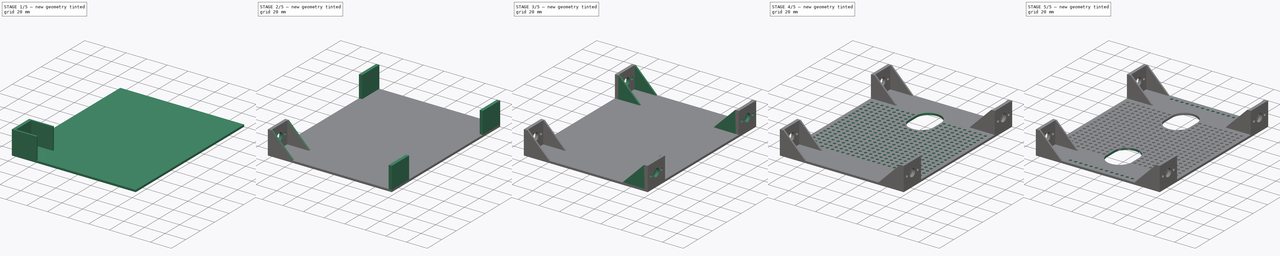
[diagram: build sequence overview — one tinted view per stage of 5, left to right]
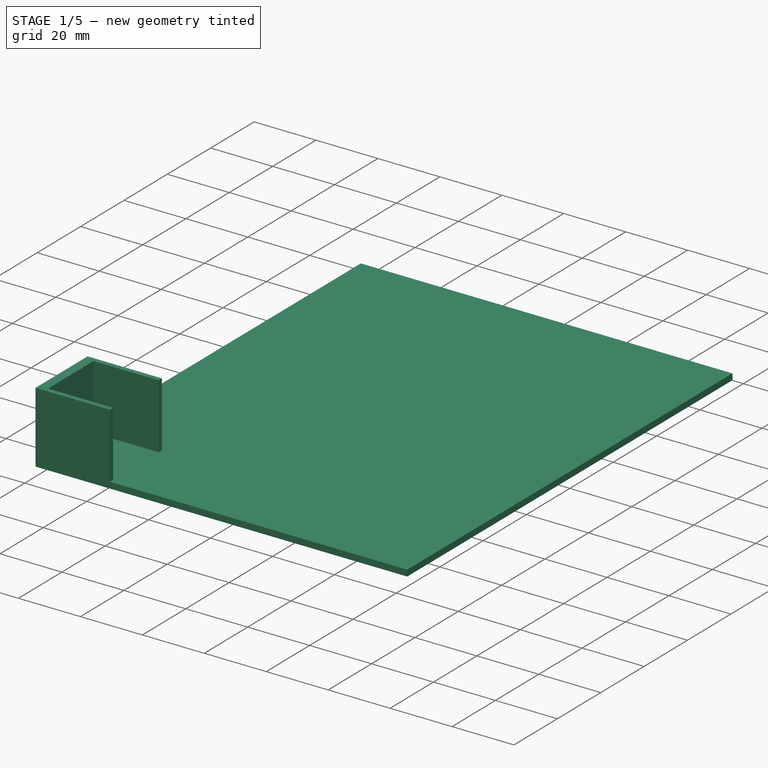
[diagram: stage 1 of 5 — iso view after this stage's code; geometry added in this stage tinted green]
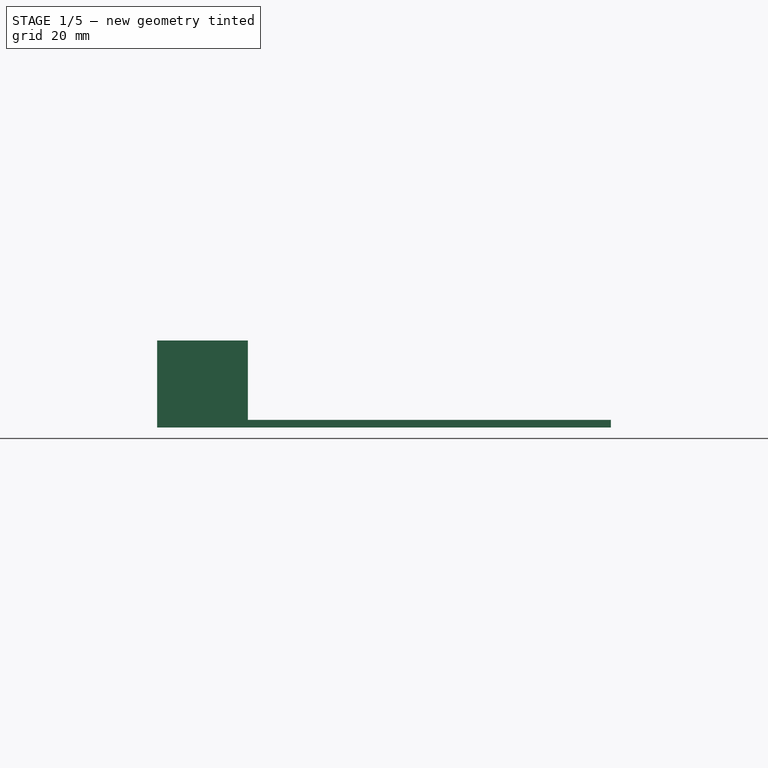
[diagram: stage 1 of 5 — front view after this stage's code; geometry added in this stage tinted green]
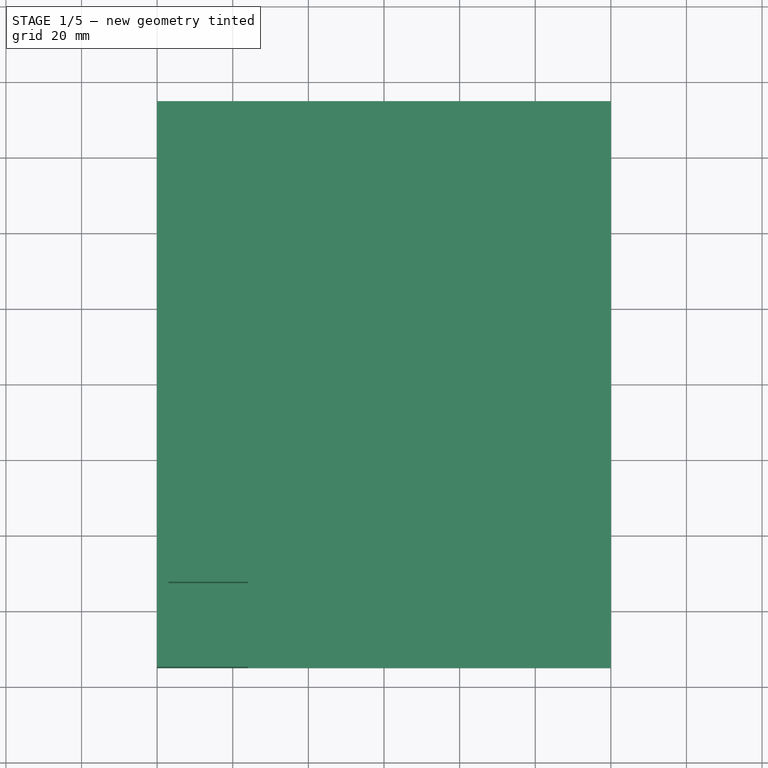
[diagram: stage 1 of 5 — top view after this stage's code; geometry added in this stage tinted green]
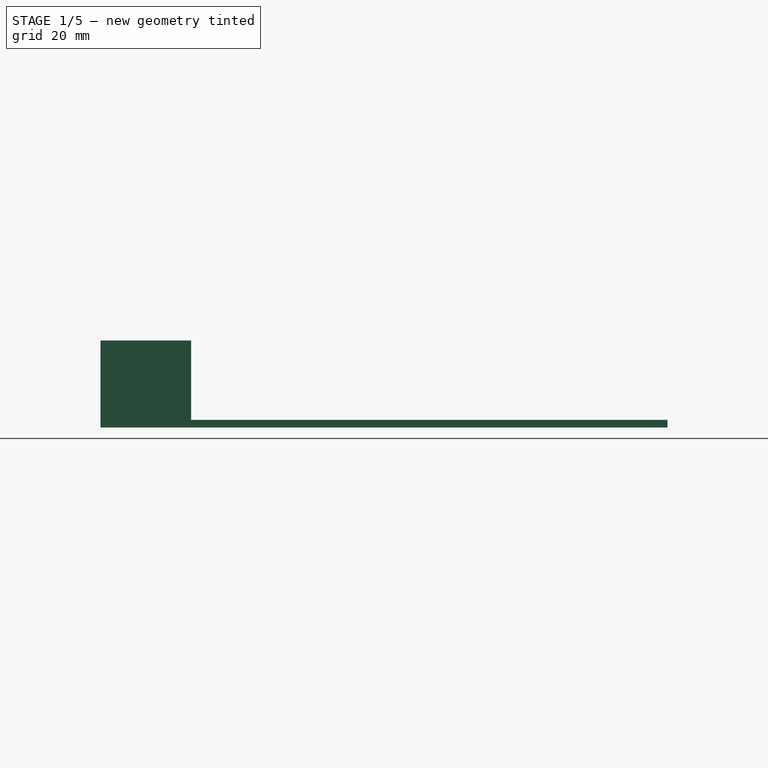
[diagram: stage 1 of 5 — right view after this stage's code; geometry added in this stage tinted green]
FCSTD DOCUMENT  (FreeCAD 0.18.4R)
Label: speed jaci
License: All rights reserved
LicenseURL: http://en.wikipedia.org/wiki/All_rights_reserved
objects: Sketcher::SketchObject×8, PartDesign::Mirrored×6, PartDesign::MultiTransform×5, PartDesign::Pocket×4, App::MeasureDistance×4, PartDesign::Pad×3, PartDesign::LinearPattern×3, PartDesign::Chamfer×2, PartDesign::PolarPattern×2, PartDesign::Body×1
note: 41 computed .brp shape members not serialized (recipe doc carries the construction recipe); baked Part::Feature solids carry a one-line shape summary decoded from their .brp

FEATURE [Sketcher::SketchObject] Sketch
  MapMode = 5
  Support = -> [XY_Plane]
  sketch-geometry (4):
    g0: LineSegment StartX=-60 StartY=75 StartZ=0 EndX=60 EndY=75 EndZ=0
    g1: LineSegment StartX=60 StartY=75 StartZ=0 EndX=60 EndY=-75 EndZ=0
    g2: LineSegment StartX=60 StartY=-75 StartZ=0 EndX=-60 EndY=-75 EndZ=0
    g3: LineSegment StartX=-60 StartY=-75 StartZ=0 EndX=-60 EndY=75 EndZ=0
  constraints (10):
    c: Coincident(g0,g1)
    c: Coincident(g1,g2)
    c: Coincident(g2,g3)
    c: Coincident(g3,g0)
    c: Horizontal(g2)
    c: Vertical(g3)
    c: Symmetric(g0,g0,g-2)
    c: Symmetric(g0,g1,g-1)
    c: Distance(g3) = 150
    c: Distance(g0) = 120
FEATURE [PartDesign::Pad] Pad
  Length = 2
  Length2 = 100
  Profile = -> Sketch
  Type = 0
FEATURE [Sketcher::SketchObject] Sketch001
  MapMode = 5
  Placement = pos=(0,0,2) rot=(0,0,1;0rad)
  Support = -> [Pad]
  expr: Constraints[9] = 21 + 1.5 * 2
  sketch-geometry (4):
    g0: LineSegment StartX=-60 StartY=-51 StartZ=0 EndX=-57 EndY=-51 EndZ=0
    g1: LineSegment StartX=-57 StartY=-51 StartZ=0 EndX=-57 EndY=-75 EndZ=0
    g2: LineSegment StartX=-57 StartY=-75 StartZ=0 EndX=-60 EndY=-75 EndZ=0
    g3: LineSegment StartX=-60 StartY=-75 StartZ=0 EndX=-60 EndY=-51 EndZ=0
  constraints (12):
    c: Coincident(g0,g1)
    c: Coincident(g1,g2)
    c: Coincident(g2,g3)
    c: Coincident(g3,g0)
    c: Horizontal(g0)
    c: Horizontal(g2)
    c: Vertical(g1)
    c: Vertical(g3)
    c: Distance(g0) = 3
    c: Distance(g1) = 24
    c: DistanceX(g2) = -60
    c: DistanceY(g2) = -75
FEATURE [PartDesign::Pad] Pad001
  BaseFeature = -> Pad
  Length = 21
  Length2 = 100
  Profile = -> Sketch001
  Type = 0
FEATURE [Sketcher::SketchObject] Sketch002
  MapMode = 5
  Placement = pos=(-57,0,0) rot=(0.57735,0.57735,0.57735;2.0944rad)
  Support = -> [Pad001]
  sketch-geometry (8):
    g0: LineSegment StartX=-75 StartY=23 StartZ=0 EndX=-73.5 EndY=23 EndZ=0
    g1: LineSegment StartX=-73.5 StartY=23 StartZ=0 EndX=-73.5 EndY=2 EndZ=0
    g2: LineSegment StartX=-73.5 StartY=2 StartZ=0 EndX=-75 EndY=2 EndZ=0
    g3: LineSegment StartX=-75 StartY=2 StartZ=0 EndX=-75 EndY=23 EndZ=0
    g4: LineSegment StartX=-51 StartY=2 StartZ=0 EndX=-52.5 EndY=2 EndZ=0
    g5: LineSegment StartX=-52.5 StartY=2 StartZ=0 EndX=-52.5 EndY=23 EndZ=0
    g6: LineSegment StartX=-52.5 StartY=23 StartZ=0 EndX=-51 EndY=23 EndZ=0
    g7: LineSegment StartX=-51 StartY=23 StartZ=0 EndX=-51 EndY=2 EndZ=0
  constraints (24):
    c: Coincident(g0,g1)
    c: Coincident(g1,g2)
    c: Coincident(g2,g3)
    c: Coincident(g3,g0)
    c: Horizontal(g0)
    c: Horizontal(g2)
    c: Vertical(g1)
    c: Vertical(g3)
    c: Coincident(g4,g5)
    c: Coincident(g5,g6)
    c: Coincident(g6,g7)
    c: Coincident(g7,g4)
    c: Horizontal(g4)
    c: Horizontal(g6)
    c: Vertical(g5)
    c: Vertical(g7)
    c: Equal(g6,g0)
    c: Distance(g0) = 1.5
    c: Equal(g7,g1)
    c: Distance(g1) = 21
    c: DistanceX(g2) = -75
    c: DistanceY(g2) = 2
    c: Distance(g1,g5) = 21
    c: PointOnObject(g4,g2)
FEATURE [PartDesign::Pad] Pad002
  BaseFeature = -> Pad001
  Length = 21
  Length2 = 100
  Profile = -> Sketch002
  Type = 0
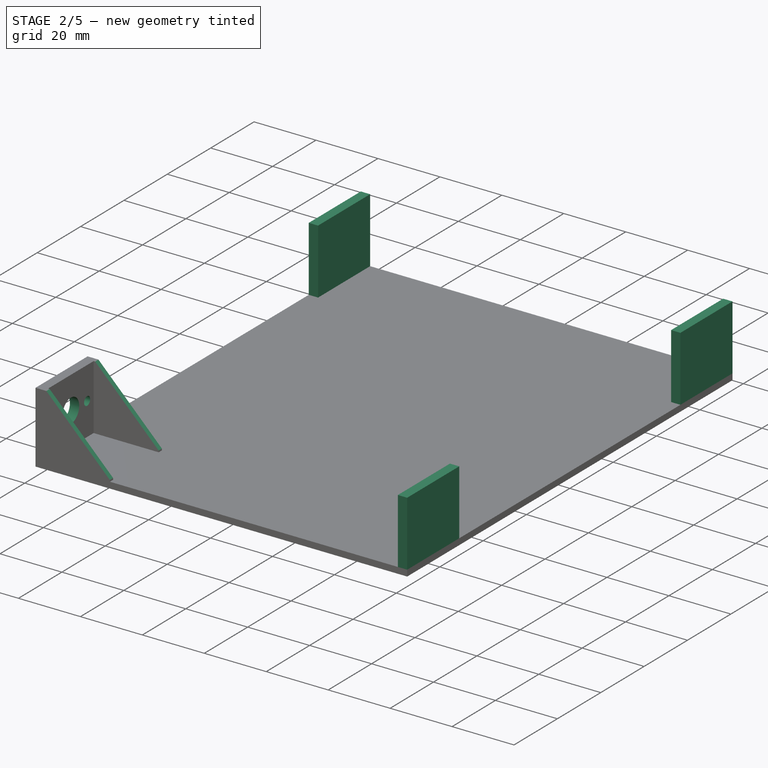
[diagram: stage 2 of 5 — iso view after this stage's code; geometry added in this stage tinted green]
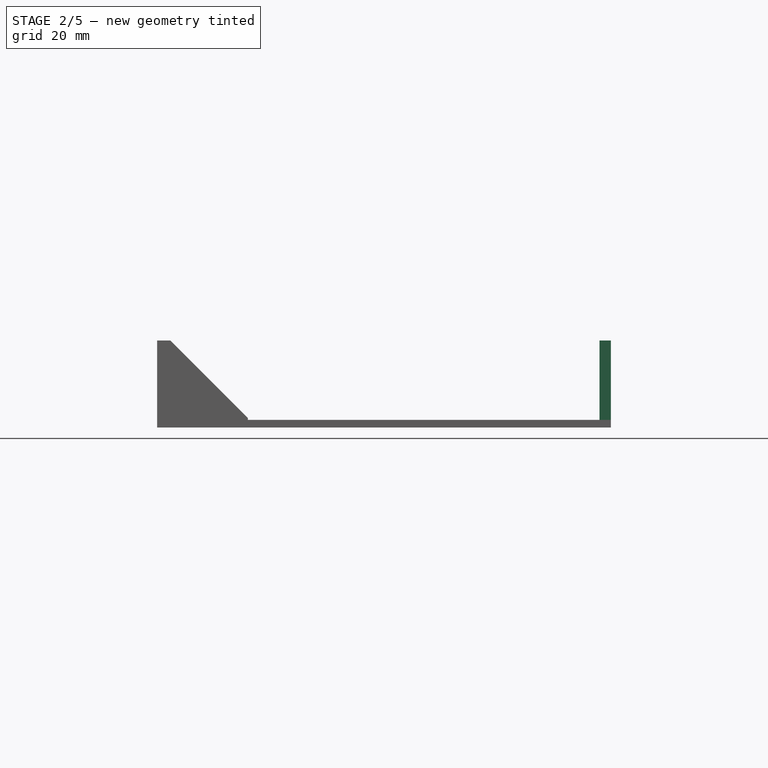
[diagram: stage 2 of 5 — front view after this stage's code; geometry added in this stage tinted green]
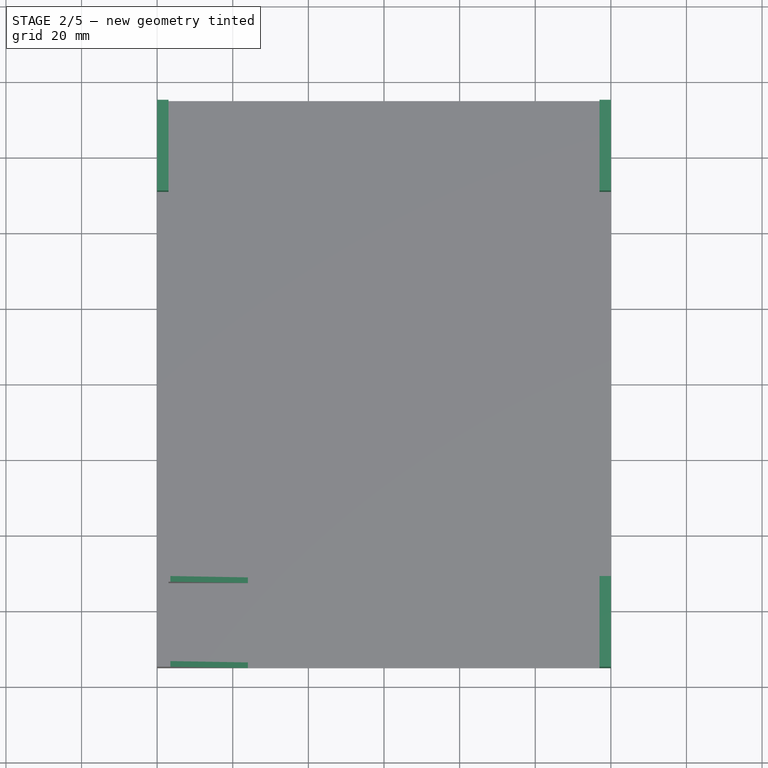
[diagram: stage 2 of 5 — top view after this stage's code; geometry added in this stage tinted green]
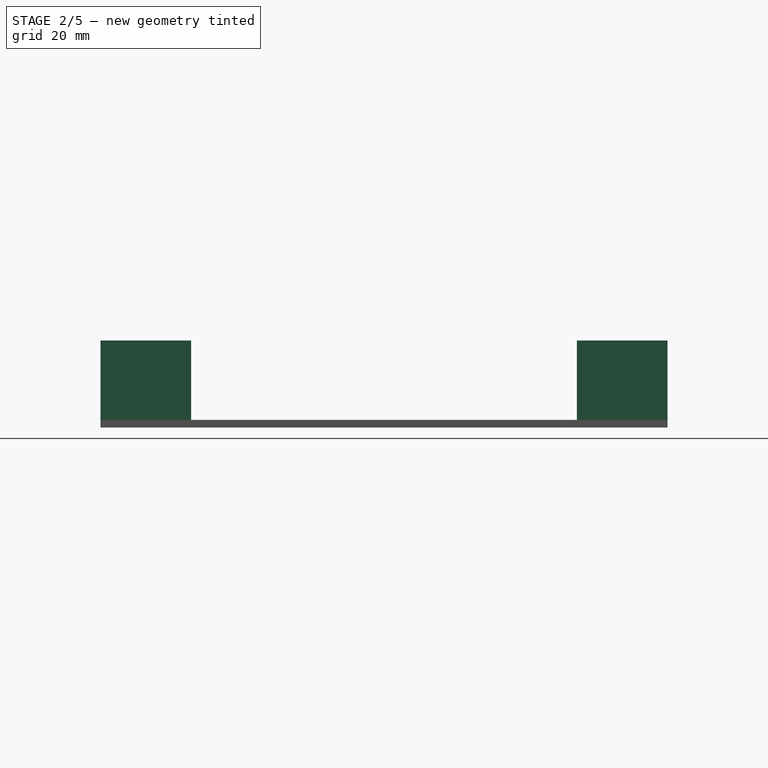
[diagram: stage 2 of 5 — right view after this stage's code; geometry added in this stage tinted green]
FEATURE [PartDesign::Chamfer] Chamfer
  Base = -> Pad002 [Edge31,Edge38]
  BaseFeature = -> Pad002
  Size = 20.5
FEATURE [Sketcher::SketchObject] Sketch003
  MapMode = 5
  Placement = pos=(-57,0,0) rot=(0.57735,0.57735,0.57735;2.0944rad)
  Support = -> [Chamfer]
  expr: Constraints[6] = 7.7 / 2
  expr: Constraints[4] = 2.8 / 2
  sketch-geometry (12):
    g0: Circle CenterX=-63 CenterY=12.5 CenterZ=0 NormalX=0 NormalY=0 NormalZ=1 AngleXU=0 Radius=3.85
    g1: Circle CenterX=-70.5 CenterY=12.5 CenterZ=0 NormalX=0 NormalY=0 NormalZ=1 AngleXU=0 Radius=1.4
    g2: Circle CenterX=-55.5 CenterY=12.5 CenterZ=0 NormalX=0 NormalY=0 NormalZ=1 AngleXU=0 Radius=1.4
    g3: LineSegment [constr] StartX=-70.5 StartY=12.5 StartZ=0 EndX=-55.5 EndY=12.5 EndZ=0
    g4: LineSegment [constr] StartX=-73.5 StartY=23 StartZ=0 EndX=-52.5 EndY=23 EndZ=0
    g5: LineSegment [constr] StartX=-52.5 StartY=23 StartZ=0 EndX=-52.5 EndY=2 EndZ=0
    g6: LineSegment [constr] StartX=-52.5 StartY=2 StartZ=0 EndX=-73.5 EndY=2 EndZ=0
    g7: LineSegment [constr] StartX=-73.5 StartY=2 StartZ=0 EndX=-73.5 EndY=23 EndZ=0
    g8: LineSegment [constr] StartX=-73.5 StartY=23 StartZ=0 EndX=-63 EndY=12.5 EndZ=0
    g9: LineSegment [constr] StartX=-63 StartY=12.5 StartZ=0 EndX=-52.5 EndY=2 EndZ=0
    g10: LineSegment [constr] StartX=-52.5 StartY=23 StartZ=0 EndX=-63 EndY=12.5 EndZ=0
    g11: LineSegment [constr] StartX=-63 StartY=12.5 StartZ=0 EndX=-73.5 EndY=2 EndZ=0
  constraints (31):
    c: Coincident(g2,g3)
    c: PointOnObject(g0,g3)
    c: Coincident(g3,g1)
    c: Horizontal(g3)
    c: Radius(g2) = 1.4
    c: Equal(g2,g1)
    c: Radius(g0) = 3.85
    c: Coincident(g4,g5)
    c: Coincident(g5,g6)
    c: Coincident(g6,g7)
    c: Coincident(g7,g4)
    c: Horizontal(g4)
    c: Horizontal(g6)
    c: Vertical(g5)
    c: DistanceX(g6) = -73.5
    c: DistanceY(g6) = 2
    c: Distance(g4) = 21
    c: Equal(g5,g4)
    c: Coincident(g8,g9)
    c: Coincident(g10,g11)
    c: Coincident(g10,g8)
    c: Coincident(g10,g0)
    c: Coincident(g8,g4)
    c: Coincident(g10,g4)
    c: Coincident(g5,g9)
    c: Coincident(g6,g11)
    c: Equal(g10,g8)
    c: Equal(g8,g11)
    c: Equal(g11,g9)
    c: Distance(g1,g0) = 7.5
    c: Distance(g0,g2) = 7.5
FEATURE [PartDesign::Pocket] Pocket
  BaseFeature = -> Chamfer
  Length = 5
  Length2 = 100
  Profile = -> Sketch003
  Type = 0
FEATURE [PartDesign::Mirrored] Mirrored
  MirrorPlane = -> Sketch001 [V_Axis]
FEATURE [PartDesign::PolarPattern] PolarPattern
  Angle = 360
  Axis = -> Sketch001 [N_Axis]
  Occurrences = 2
FEATURE [PartDesign::MultiTransform] MultiTransform
  BaseFeature = -> Pocket
  Originals = -> [Pad001]
  Transformations = -> [Mirrored,PolarPattern]
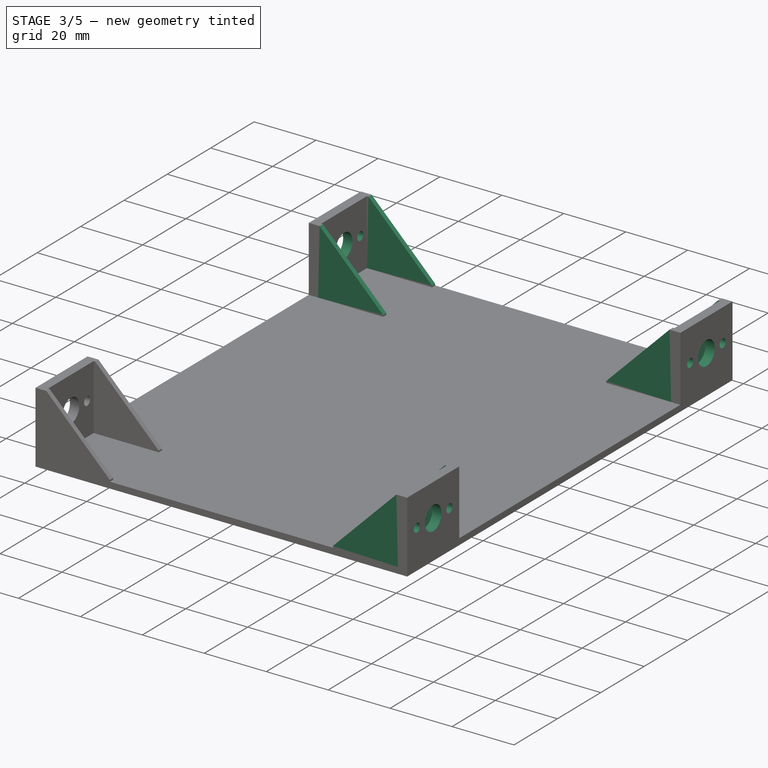
[diagram: stage 3 of 5 — iso view after this stage's code; geometry added in this stage tinted green]
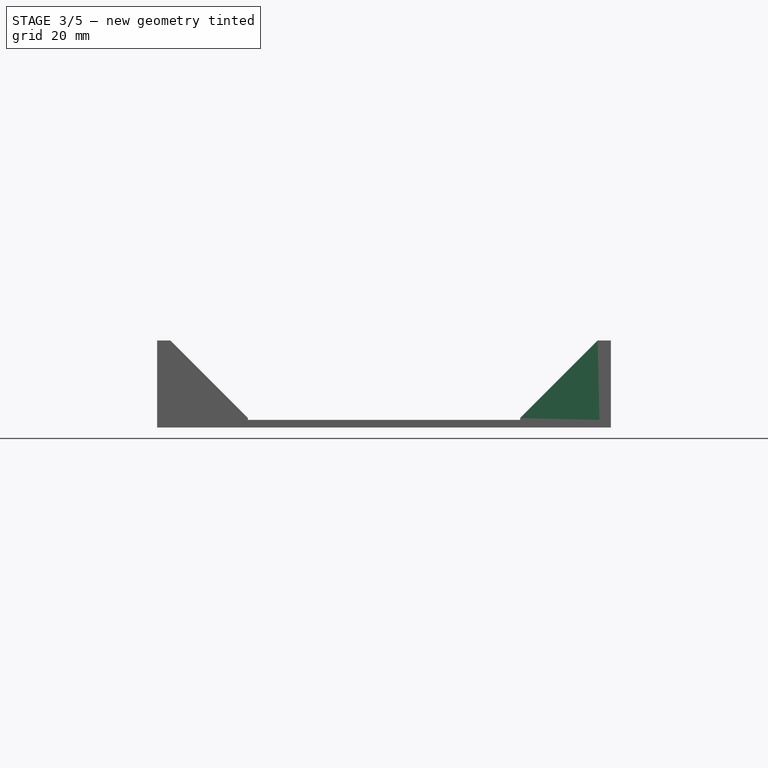
[diagram: stage 3 of 5 — front view after this stage's code; geometry added in this stage tinted green]
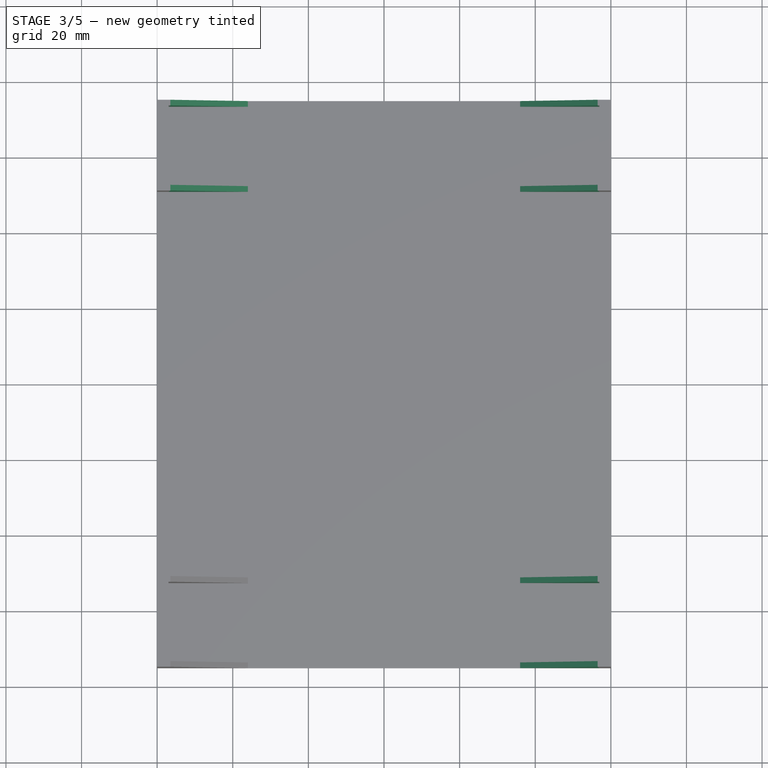
[diagram: stage 3 of 5 — top view after this stage's code; geometry added in this stage tinted green]
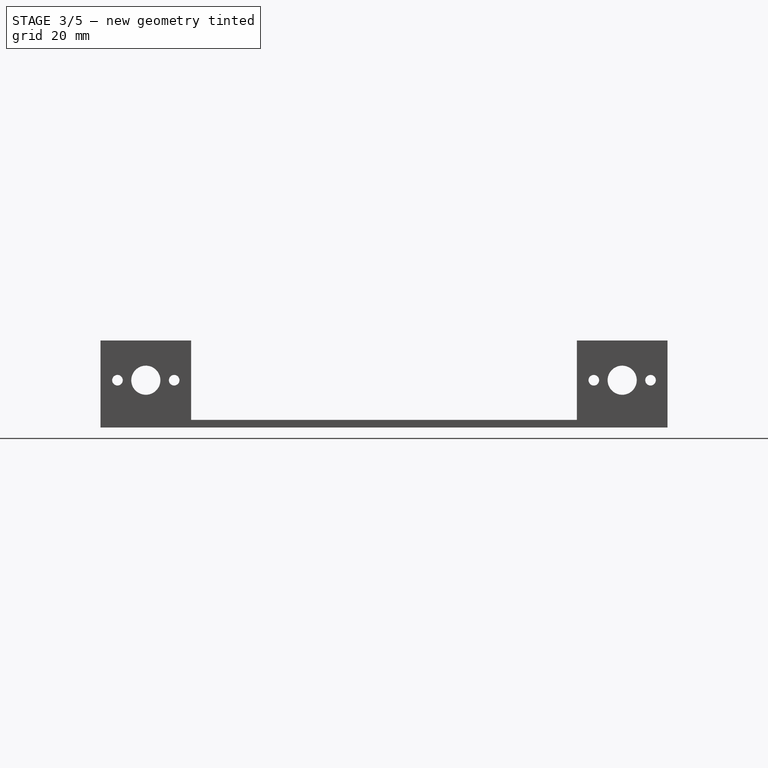
[diagram: stage 3 of 5 — right view after this stage's code; geometry added in this stage tinted green]
FEATURE [PartDesign::Mirrored] Mirrored001
  MirrorPlane = -> YZ_Plane
FEATURE [PartDesign::Mirrored] Mirrored002
  MirrorPlane = -> Sketch002 [V_Axis]
FEATURE [PartDesign::MultiTransform] MultiTransform001
  BaseFeature = -> MultiTransform
  Originals = -> [Pad002]
  Transformations = -> [Mirrored001,Mirrored002]
FEATURE [PartDesign::Mirrored] Mirrored003
  MirrorPlane = -> YZ_Plane
FEATURE [PartDesign::Mirrored] Mirrored004
  MirrorPlane = -> Sketch003 [V_Axis]
FEATURE [PartDesign::MultiTransform] MultiTransform002
  BaseFeature = -> MultiTransform001
  Originals = -> [Pocket]
  Transformations = -> [Mirrored003,Mirrored004]
FEATURE [PartDesign::Chamfer] Chamfer001
  Base = -> MultiTransform002 [Edge117,Edge129,Edge109,Edge99,Edge83,Edge71]
  BaseFeature = -> MultiTransform002
  Size = 20.5
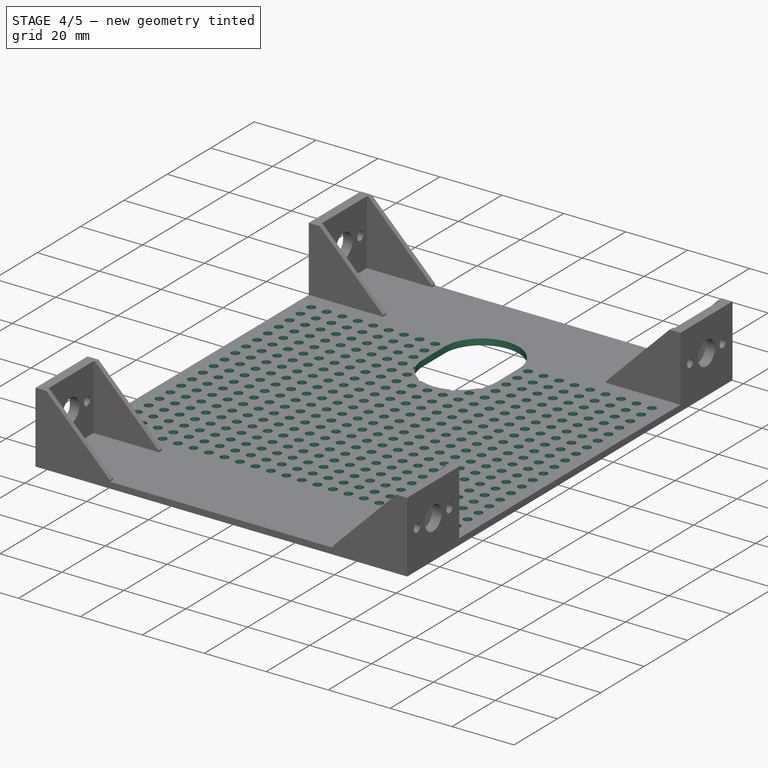
[diagram: stage 4 of 5 — iso view after this stage's code; geometry added in this stage tinted green]
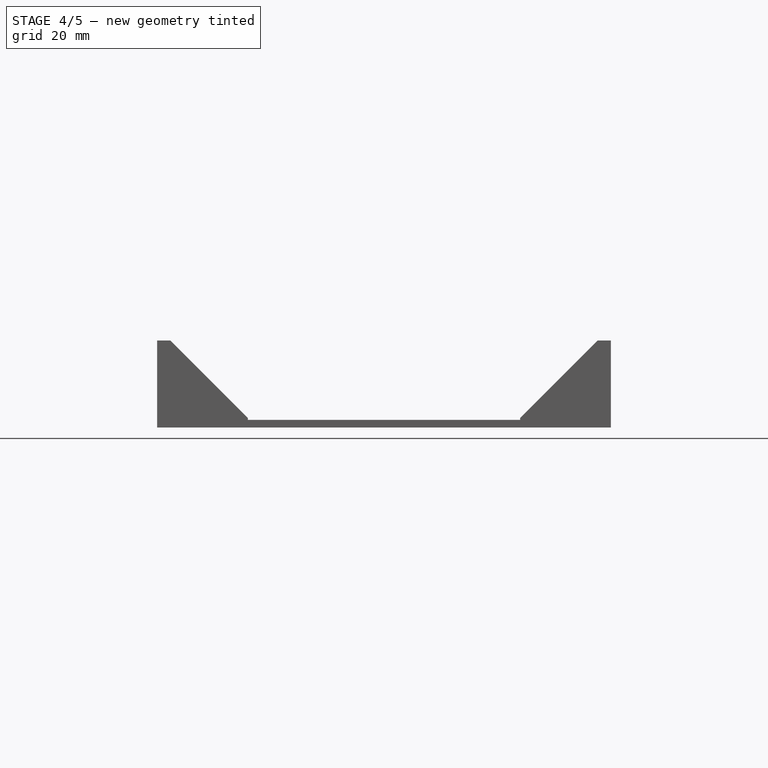
[diagram: stage 4 of 5 — front view after this stage's code; geometry added in this stage tinted green]
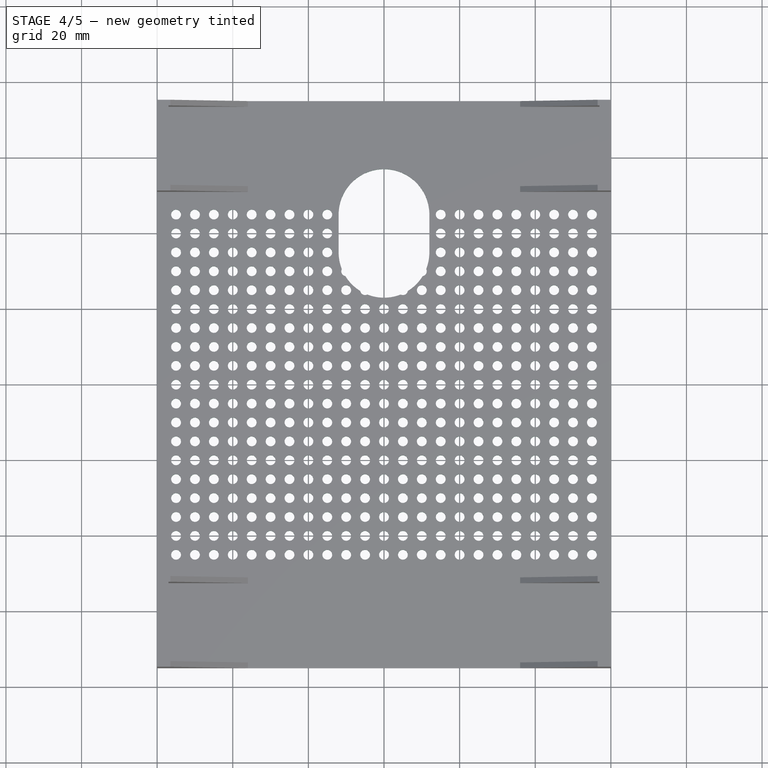
[diagram: stage 4 of 5 — top view after this stage's code; geometry added in this stage tinted green]
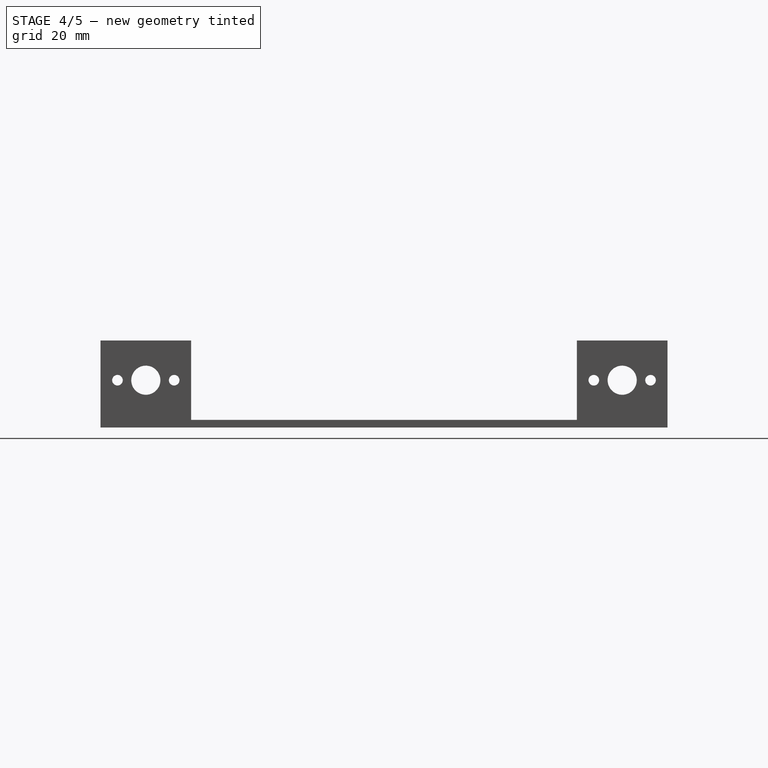
[diagram: stage 4 of 5 — right view after this stage's code; geometry added in this stage tinted green]
FEATURE [Sketcher::SketchObject] Sketch004
  MapMode = 5
  Placement = pos=(0,0,2) rot=(0,0,1;0rad)
  Support = -> [Chamfer001]
FEATURE [Sketcher::SketchObject] Sketch005
  MapMode = 5
  Placement = pos=(0,0,2) rot=(0,0,1;0rad)
  Support = -> [Chamfer001]
  sketch-geometry (1):
    g0: Circle CenterX=-55 CenterY=-45 CenterZ=0 NormalX=0 NormalY=0 NormalZ=1 AngleXU=0 Radius=1.3
  constraints (3):
    c: DistanceX(g0) = -55
    c: DistanceY(g0) = -45
    c: Radius(g0) = 1.3
FEATURE [PartDesign::Pocket] Pocket001
  BaseFeature = -> Chamfer001
  Length = 5
  Length2 = 100
  Profile = -> Sketch005
  Type = 0
FEATURE [PartDesign::LinearPattern] LinearPattern
  Direction = -> Sketch005 [H_Axis]
  Length = 110
  Occurrences = 23
FEATURE [PartDesign::LinearPattern] LinearPattern001
  Direction = -> Sketch005 [V_Axis]
  Length = 90
  Occurrences = 19
FEATURE [PartDesign::MultiTransform] MultiTransform003
  BaseFeature = -> Pocket001
  Originals = -> [Pocket001]
  Transformations = -> [LinearPattern,LinearPattern001]
FEATURE [Sketcher::SketchObject] Sketch006
  MapMode = 5
  Placement = pos=(0,0,2) rot=(0,0,1;0rad)
  Support = -> [MultiTransform003]
  sketch-geometry (4):
    g0: ArcOfCircle CenterX=-2.042e-13 CenterY=35 CenterZ=0 NormalX=0 NormalY=0 NormalZ=1 AngleXU=0 Radius=12 StartAngle=3.14159 EndAngle=6.28319
    g1: ArcOfCircle CenterX=0 CenterY=45 CenterZ=0 NormalX=0 NormalY=0 NormalZ=1 AngleXU=0 Radius=12 StartAngle=0 EndAngle=3.14159
    g2: LineSegment StartX=12 StartY=35 StartZ=0 EndX=12 EndY=45 EndZ=0
    g3: LineSegment StartX=-12 StartY=35 StartZ=0 EndX=-12 EndY=45 EndZ=0
  constraints (10):
    c: Tangent(g0,g3) = 1.5708
    c: Tangent(g0,g2) = -1.5708
    c: Tangent(g2,g1) = -1.5708
    c: Tangent(g3,g1) = 1.5708
    c: Vertical(g2)
    c: Equal(g0,g1)
    c: PointOnObject(g1,g-2)
    c: Radius(g1) = 12
    c: Distance(g1,g0) = 10
    c: DistanceY(g0) = 35
FEATURE [PartDesign::Pocket] Pocket002
  BaseFeature = -> MultiTransform003
  Length = 5
  Length2 = 100
  Profile = -> Sketch006
  Type = 0
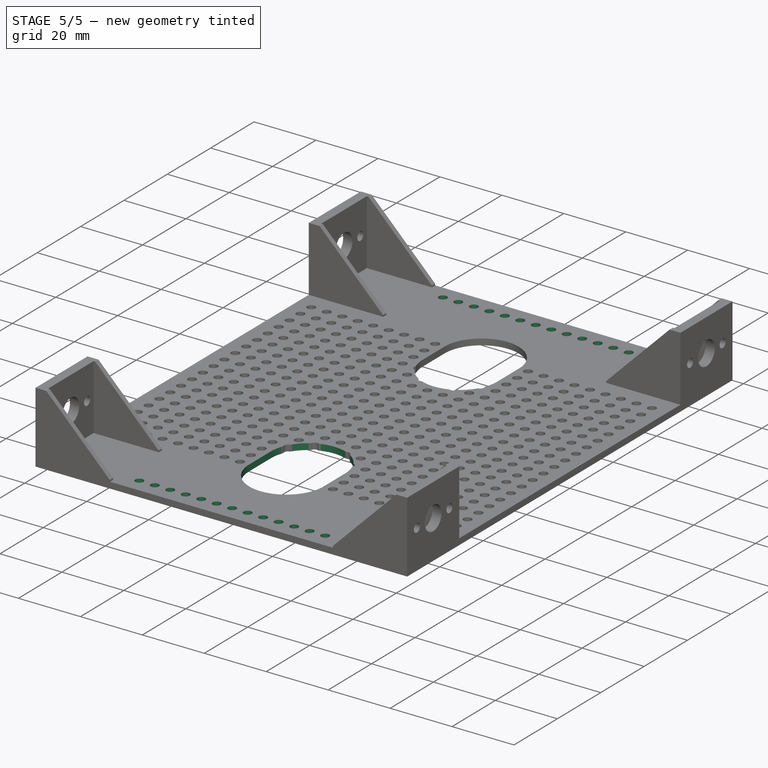
[diagram: stage 5 of 5 — iso view after this stage's code; geometry added in this stage tinted green]
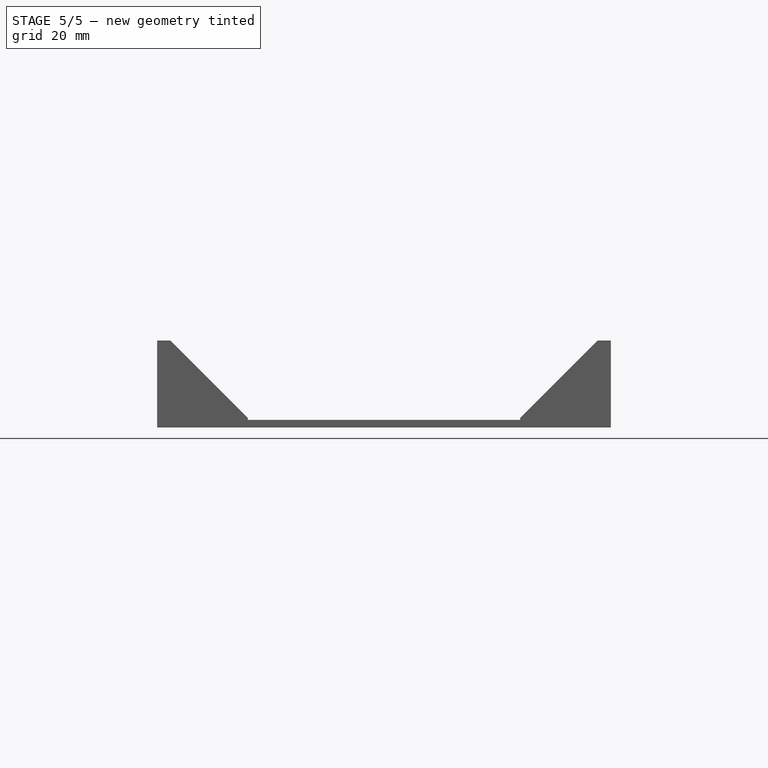
[diagram: stage 5 of 5 — front view after this stage's code; geometry added in this stage tinted green]
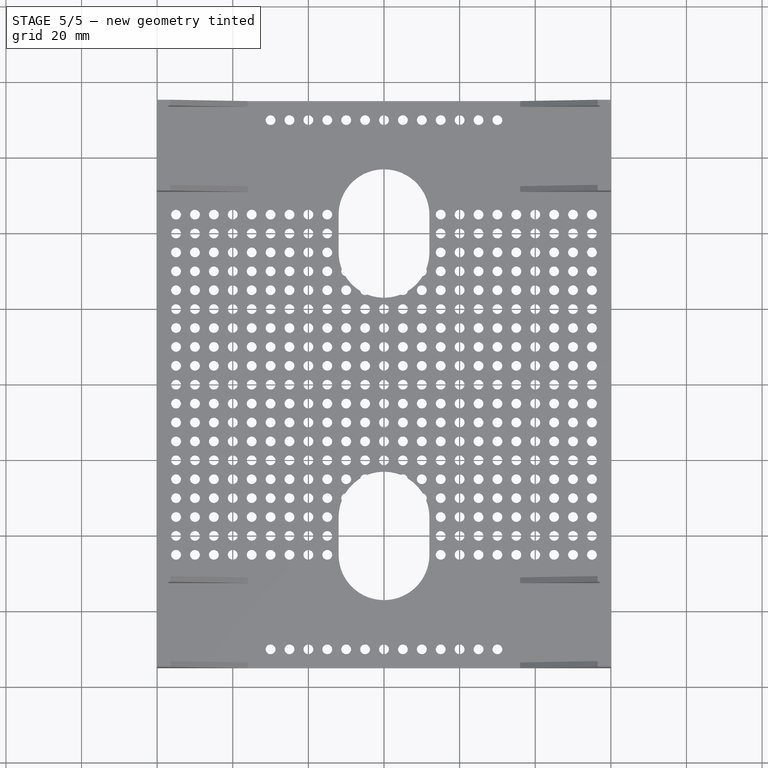
[diagram: stage 5 of 5 — top view after this stage's code; geometry added in this stage tinted green]
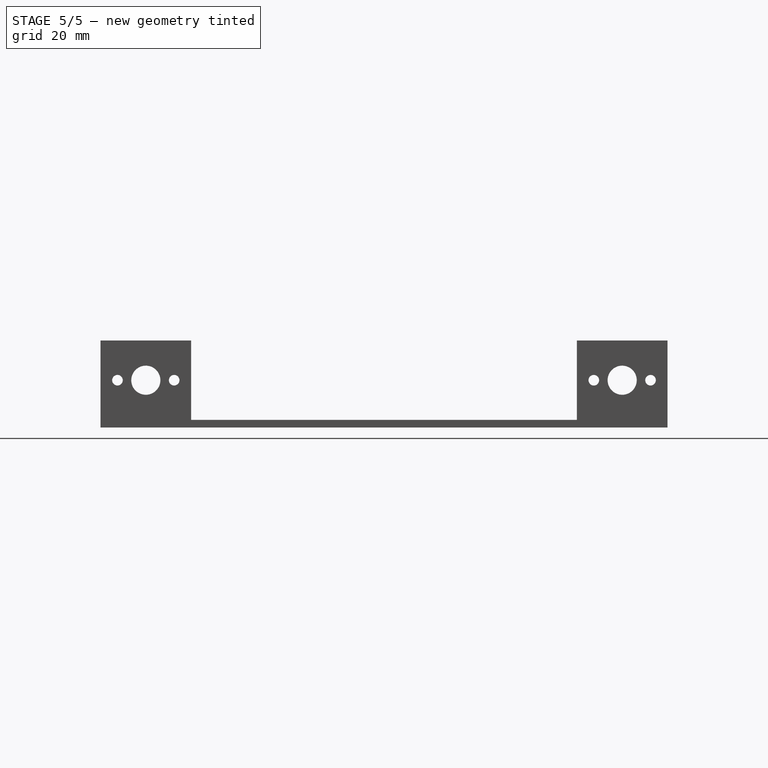
[diagram: stage 5 of 5 — right view after this stage's code; geometry added in this stage tinted green]
FEATURE [PartDesign::PolarPattern] PolarPattern001
  Angle = 360
  Axis = -> Sketch006 [N_Axis]
  BaseFeature = -> Pocket002
  Occurrences = 2
  Originals = -> [Pocket002]
FEATURE [Sketcher::SketchObject] Sketch007
  MapMode = 5
  Placement = pos=(0,0,2) rot=(0,0,1;0rad)
  Support = -> [PolarPattern001]
  sketch-geometry (1):
    g0: Circle CenterX=-30 CenterY=70 CenterZ=0 NormalX=0 NormalY=0 NormalZ=1 AngleXU=0 Radius=1.3
  constraints (3):
    c: Radius(g0) = 1.3
    c: DistanceX(g0) = -30
    c: DistanceY(g0) = 70
FEATURE [PartDesign::Pocket] Pocket003
  BaseFeature = -> PolarPattern001
  Length = 5
  Length2 = 100
  Profile = -> Sketch007
  Type = 0
FEATURE [PartDesign::LinearPattern] LinearPattern002
  Direction = -> Sketch007 [H_Axis]
  Length = 60
  Occurrences = 13
FEATURE [PartDesign::Mirrored] Mirrored005
  MirrorPlane = -> Sketch007 [H_Axis]
FEATURE [PartDesign::MultiTransform] MultiTransform004
  BaseFeature = -> Pocket003
  Originals = -> [Pocket003]
  Transformations = -> [LinearPattern002,Mirrored005]
FEATURE [PartDesign::Body] Body
  Group = -> [Sketch,Pad,Sketch001,Pad001,Sketch002,Pad002,Chamfer,Sketch003,Pocket,MultiTransform,Mirrored,PolarPattern,MultiTransform001,Mirrored001,Mirrored002,MultiTransform002,Mirrored003,Mirrored004,Chamfer001,Sketch004,Sketch005,Pocket001,MultiTransform003,LinearPattern,LinearPattern001,Sketch006,Pocket002,PolarPattern001,Sketch007,Pocket003,MultiTransform004,LinearPattern002,Mirrored005]
  Origin = -> Origin
  Tip = -> MultiTransform004
FEATURE [App::MeasureDistance] Distance  label="Distance: 7,70 mm"
  Distance = 7.7
  P1 = (60,66.85,12.5)
  P2 = (60,59.15,12.5)
FEATURE [App::MeasureDistance] Distance001  label="Distance: 2,86 mm"
  Distance = 2.86363
  P1 = (60,56.9636,12.5183)
  P2 = (60,54.1,12.5)
FEATURE [App::MeasureDistance] Distance002  label="Distance: 2,25 mm"
  Distance = 2.25
  P1 = (60,59.15,12.5)
  P2 = (60,56.9,12.5)
FEATURE [App::MeasureDistance] Distance003  label="Distance: 21,00 mm"
  Distance = 20.9957
  P1 = (57,52.5364,2.00438)
  P2 = (56.9788,52.5,23)
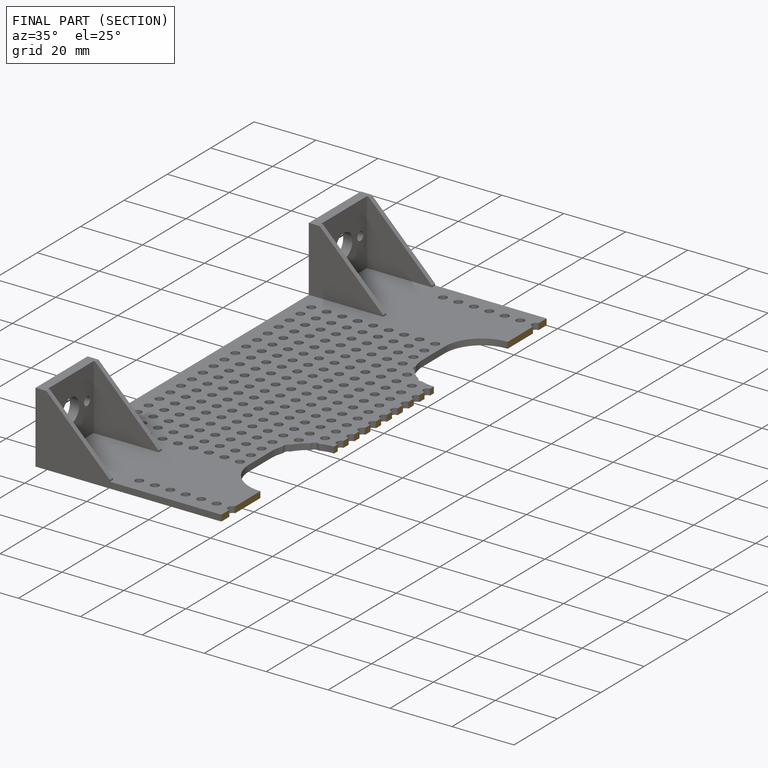
[diagram: finished part — half-section view (interior)]
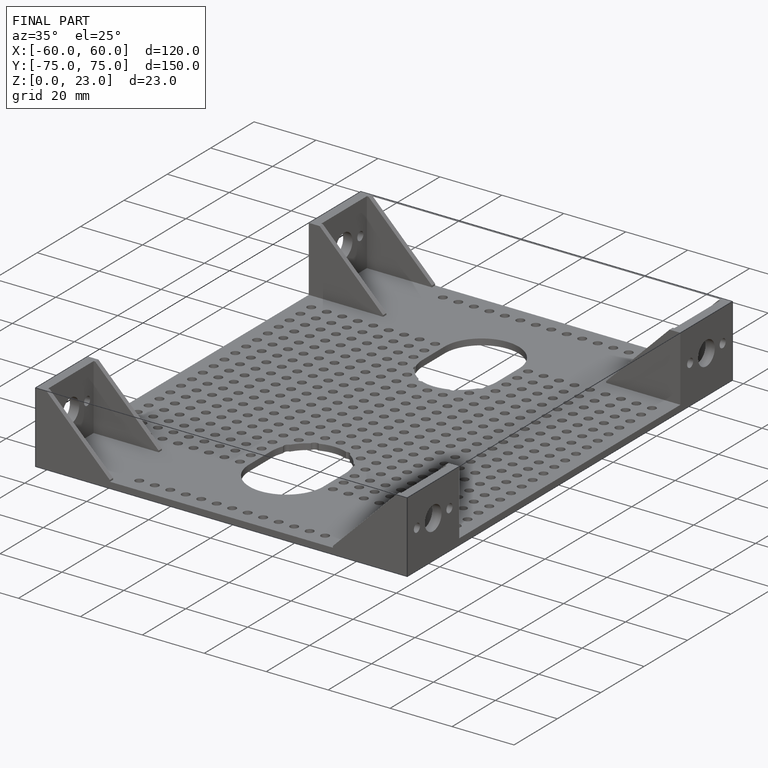
[diagram: finished part — iso view with bounding-box wireframe]
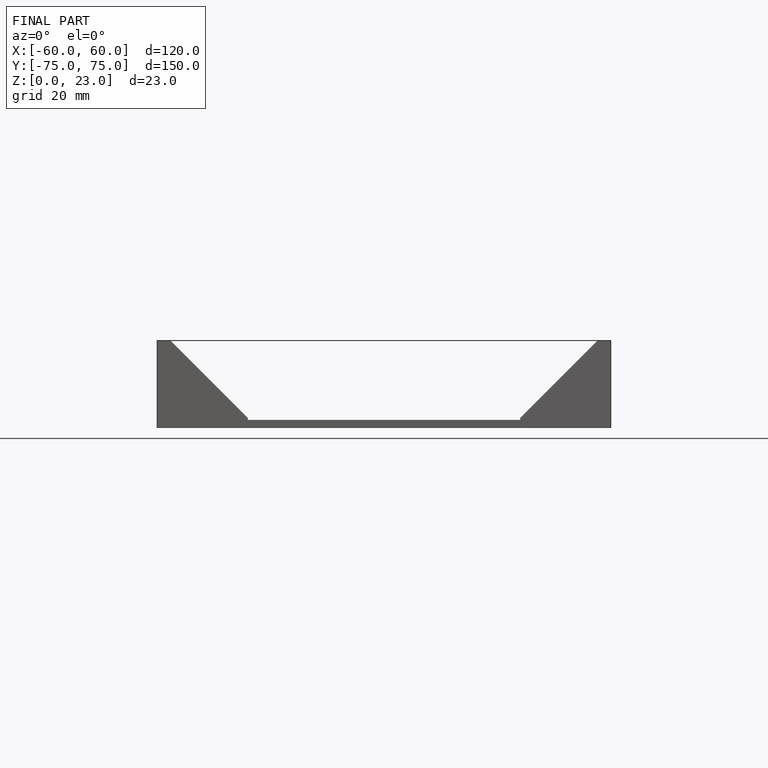
[diagram: finished part — front view with bounding-box wireframe]
